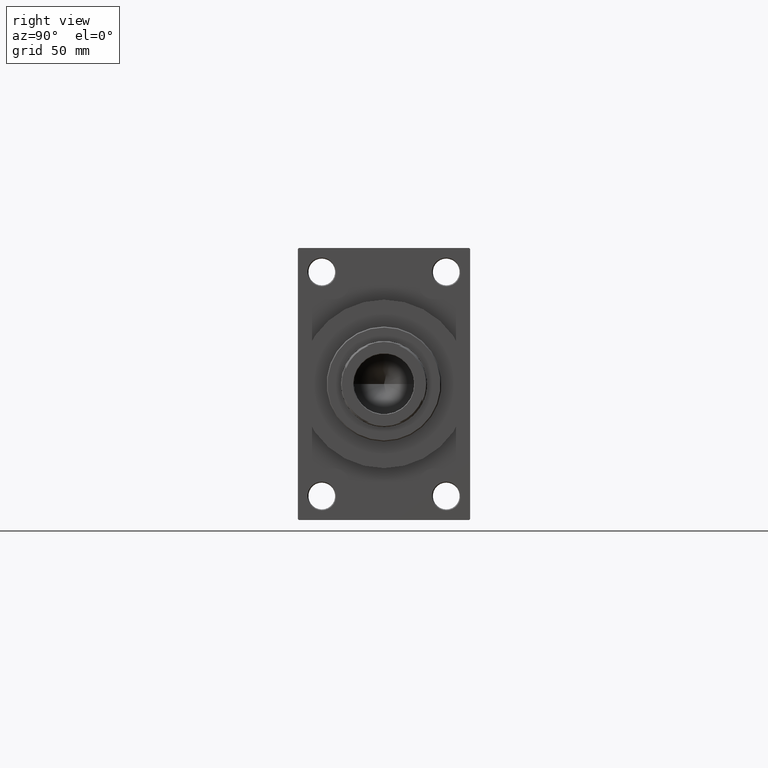
[diagram: clean part render]
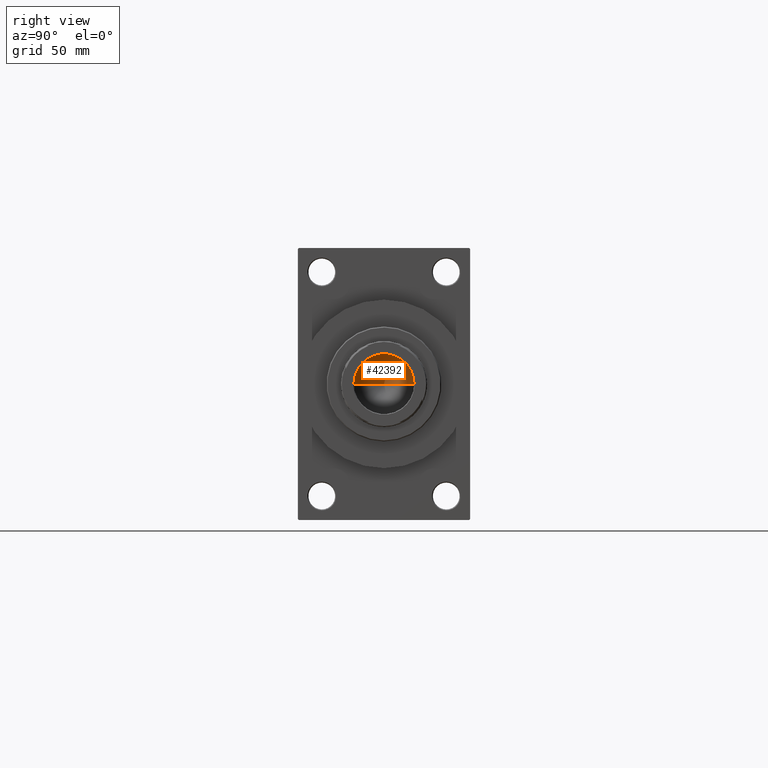
[diagram: same view with one face highlighted and labeled with its STEP entity id]
A machine part, right view. The second image highlights one B-rep face of the part: STEP entity #42392.
In plain terms, the highlighted conical surface has half-angle 59 deg.
Its self-contained STEP definition (entity closure, byte-faithful):
#724 = CARTESIAN_POINT ( 'NONE',  ( 0.000000000000000000, 0.000000000000000000, 235.0000000000000000 ) ) ;
#1812 = DIRECTION ( 'NONE',  ( -0.000000000000000000, -0.000000000000000000, 1.000000000000000000 ) ) ;
#3091 = EDGE_CURVE ( 'NONE', #40970, #7764, #46646, .T. ) ;
#3581 = AXIS2_PLACEMENT_3D ( 'NONE', #34438, #1812, #27783 ) ;
#4788 = AXIS2_PLACEMENT_3D ( 'NONE', #724, #40750, #25529 ) ;
#5048 = DIRECTION ( 'NONE',  ( 0.8571673007021112234, 0.000000000000000000, 0.5150380749100560429 ) ) ;
#5077 = DIRECTION ( 'NONE',  ( -0.8571673007021112234, 1.049727191138617340E-16, 0.5150380749100560429 ) ) ;
#7764 = VERTEX_POINT ( 'NONE', #42666 ) ;
#9971 = EDGE_CURVE ( 'NONE', #26081, #7764, #37676, .T. ) ;
#13240 = FACE_OUTER_BOUND ( 'NONE', #13928, .T. ) ;
#13928 = EDGE_LOOP ( 'NONE', ( #36679, #40596, #28190 ) ) ;
#15811 = CARTESIAN_POINT ( 'NONE',  ( -15.74999999999998934, 1.928818708657080161E-15, 235.0000000000000000 ) ) ;
#17819 = VECTOR ( 'NONE', #5048, 1000.000000000000000 ) ;
#23684 = LINE ( 'NONE', #15811, #36942 ) ;
#25529 = DIRECTION ( 'NONE',  ( 1.000000000000000000, 0.000000000000000000, 0.000000000000000000 ) ) ;
#26081 = VERTEX_POINT ( 'NONE', #37962 ) ;
#27783 = DIRECTION ( 'NONE',  ( 1.000000000000000000, 0.000000000000000000, 0.000000000000000000 ) ) ;
#28190 = ORIENTED_EDGE ( 'NONE', *, *, #3091, .T. ) ;
#34438 = CARTESIAN_POINT ( 'NONE',  ( 0.000000000000000000, 0.000000000000000000, 235.0000000000000000 ) ) ;
#35512 = EDGE_CURVE ( 'NONE', #26081, #40970, #23684, .T. ) ;
#36679 = ORIENTED_EDGE ( 'NONE', *, *, #9971, .F. ) ;
#36942 = VECTOR ( 'NONE', #5077, 1000.000000000000000 ) ;
#37676 = LINE ( 'NONE', #38402, #17819 ) ;
#37962 = CARTESIAN_POINT ( 'NONE',  ( -1.584115414415908206E-14, 0.000000000000000000, 225.5364452503158930 ) ) ;
#38402 = CARTESIAN_POINT ( 'NONE',  ( 15.74999999999998934, 0.000000000000000000, 235.0000000000000000 ) ) ;
#38440 = CARTESIAN_POINT ( 'NONE',  ( -15.74999999999998934, 1.928818708657080161E-15, 235.0000000000000000 ) ) ;
#40596 = ORIENTED_EDGE ( 'NONE', *, *, #35512, .T. ) ;
#40750 = DIRECTION ( 'NONE',  ( -0.000000000000000000, -0.000000000000000000, 1.000000000000000000 ) ) ;
#40970 = VERTEX_POINT ( 'NONE', #38440 ) ;
#42392 = ADVANCED_FACE ( 'NONE', ( #13240 ), #44669, .F. ) ;
#42666 = CARTESIAN_POINT ( 'NONE',  ( 15.74999999999998934, 0.000000000000000000, 235.0000000000000000 ) ) ;
#44669 = CONICAL_SURFACE ( 'NONE', #3581, 15.74999999999998934, 1.029744258676652313 ) ;
#46646 = CIRCLE ( 'NONE', #4788, 15.74999999999998934 ) ;